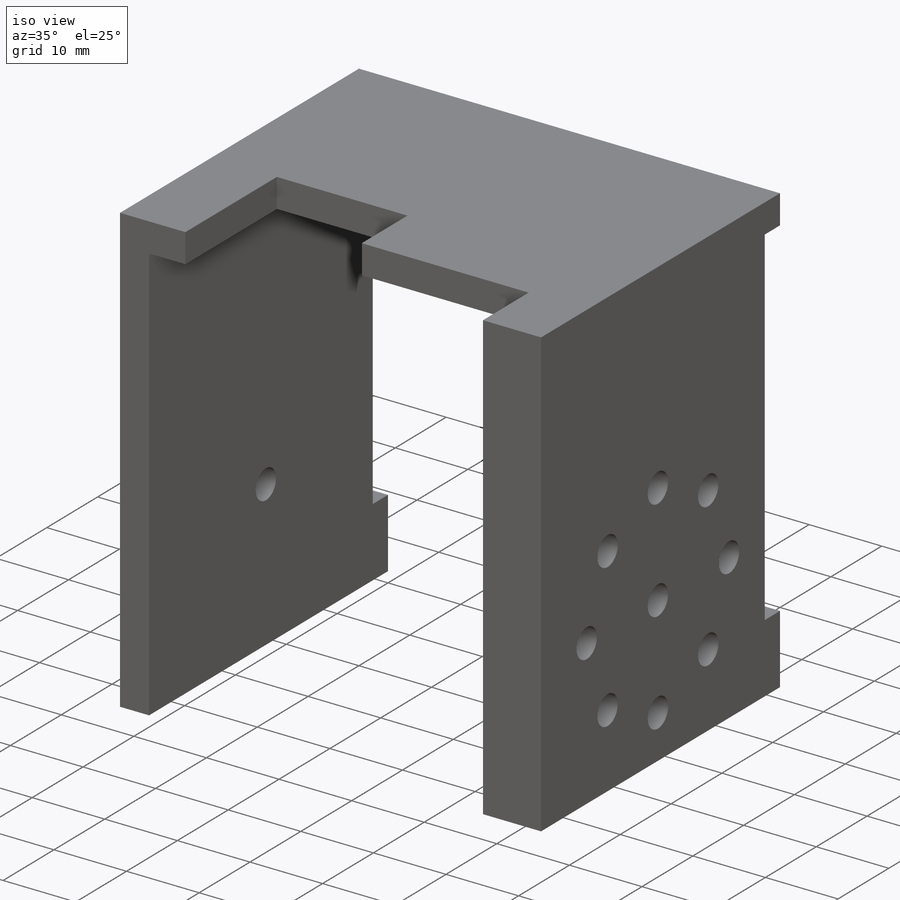
[diagram: iso view]
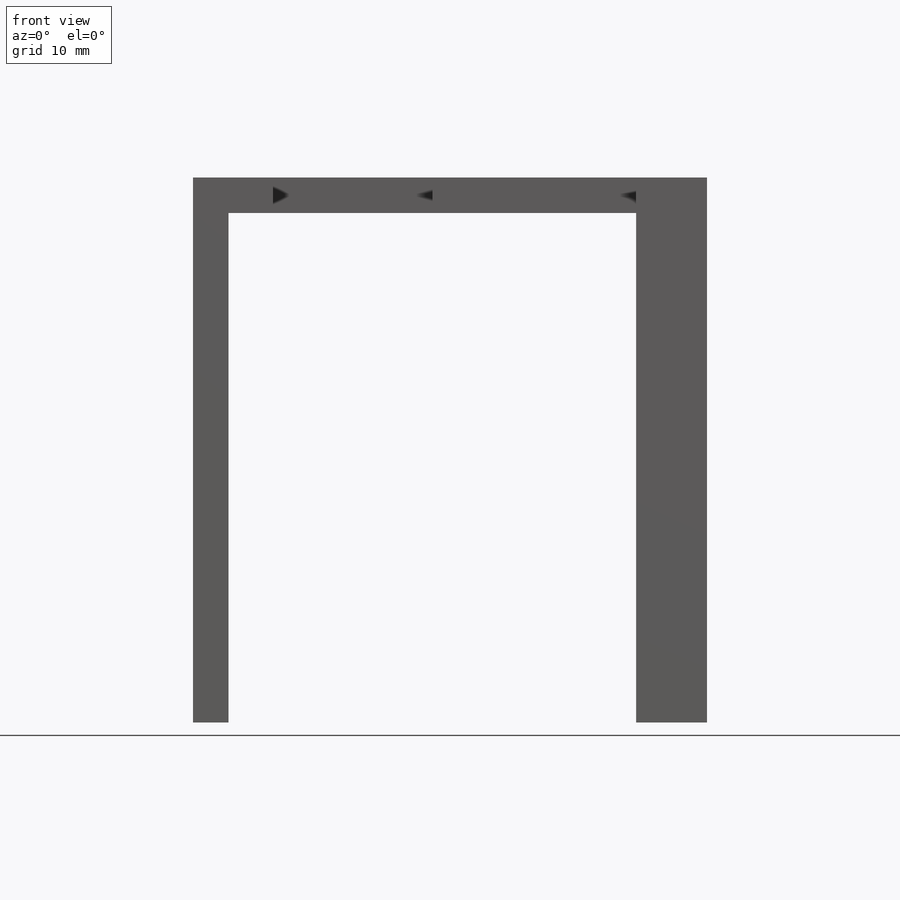
[diagram: front view]
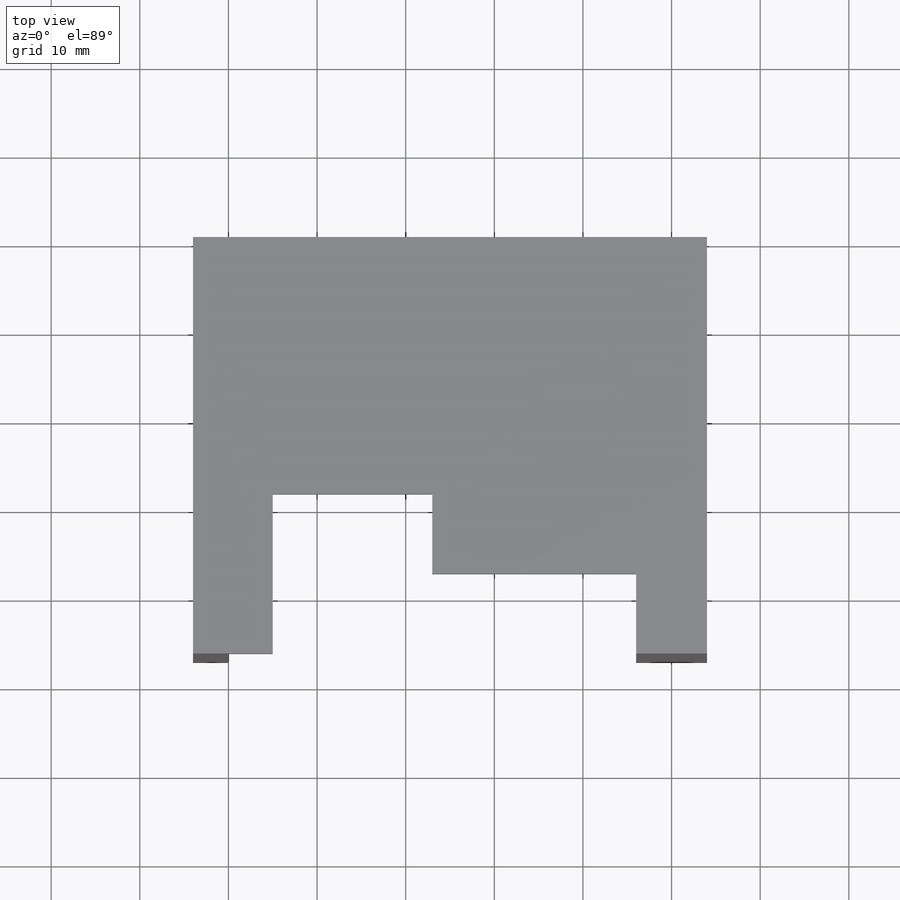
[diagram: top view]
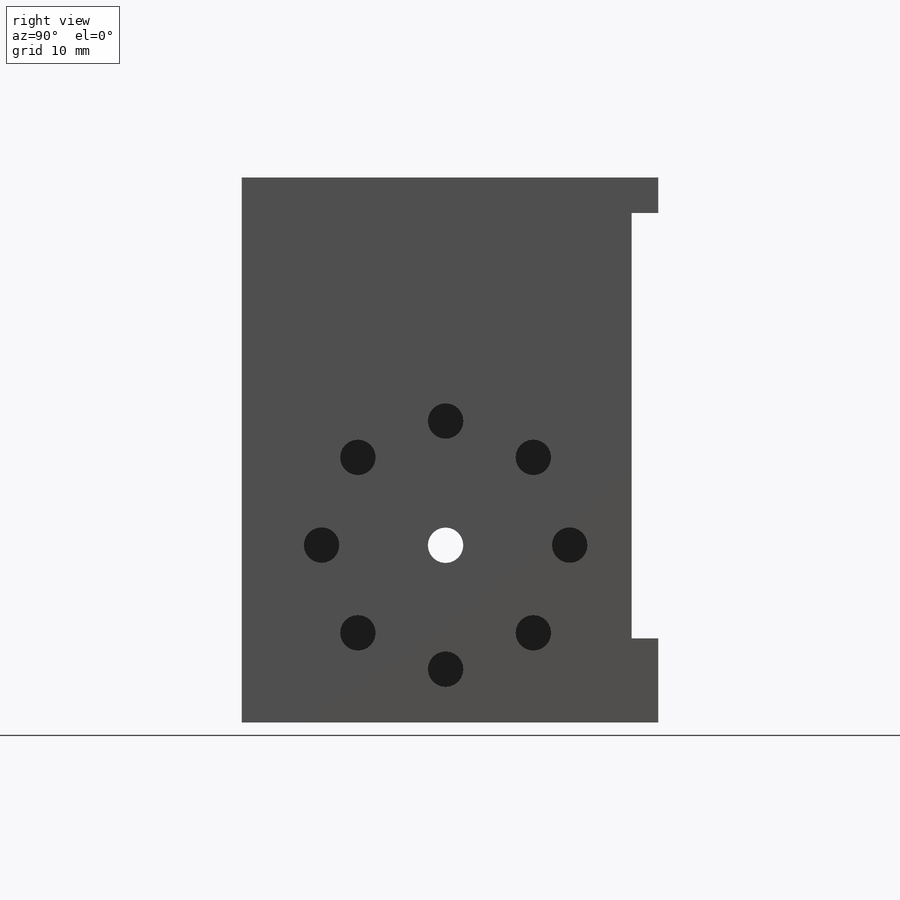
[diagram: right view]
SOLIDWORKS PART (.sldprt)
format: sldprt  version: not decoded by parser v0  size: 167,424 bytes
history: native  units: mm
features: sketch x4, plane x3, cut_extrude x3, material x1, extrude x1 (+11 scaffold rows collapsed)
feature tree (23):
  scaffold x11  (default folders/planes/origin — collapsed)
  material  "Matériau <non spécifié>"
  plane  "Plan de face"
  plane  "Plan de dessus"
  plane  "Plan de droite"
  sketch  "Esquisse1"  dims[D1=4.0mm]
  extrude  "Extrusion1"  Depth=47mm
  sketch  "Esquisse2"  dims[c1.D2=~2.414053mm c1.D1=20.0mm c2.D1=24.0mm c2.D2=4.0mm c2.D3=48.0mm c2.D4=3.0mm]
  cut_extrude  "Extrusion2"  [1 undecoded]
  sketch  "Esquisse3"  dims[D1=~5.083649mm]
  cut_extrude  "Extrusion3"  [1 undecoded]
  sketch  "Esquisse4"  dims[D1=18.0mm D2=5.0mm D3=18.0mm]
  cut_extrude  "Extrusion4"  [1 undecoded]
decode coverage: 5 of 8 modeling features carry decoded parameters
note: ~ marks probable driven/reference dimensions
note: 3 parameter values undecoded
summary: no parameter record found for 3 features
note: suppression state not decoded; provenance and decode notes live in map.json
